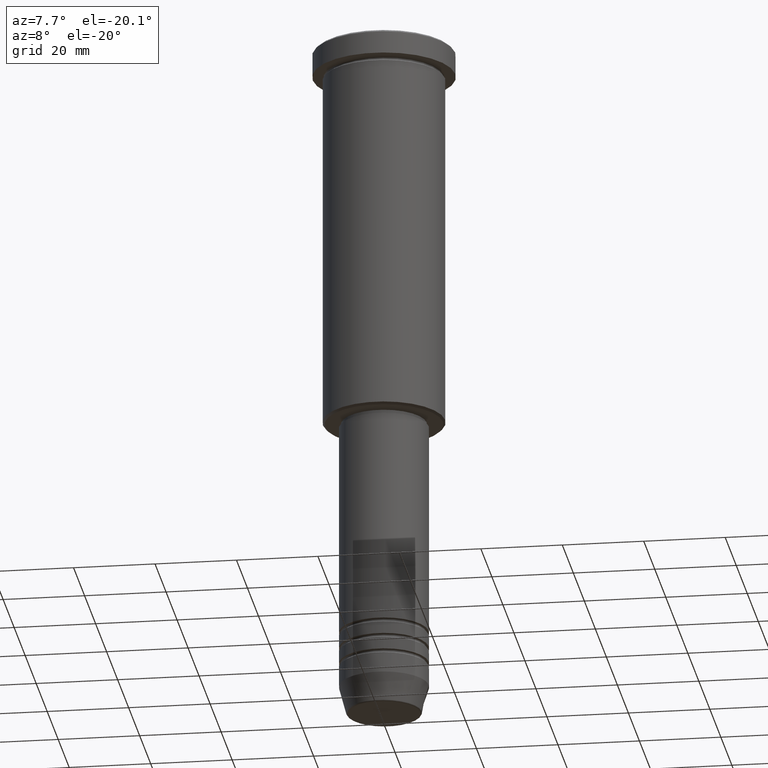
[diagram: clean part render]
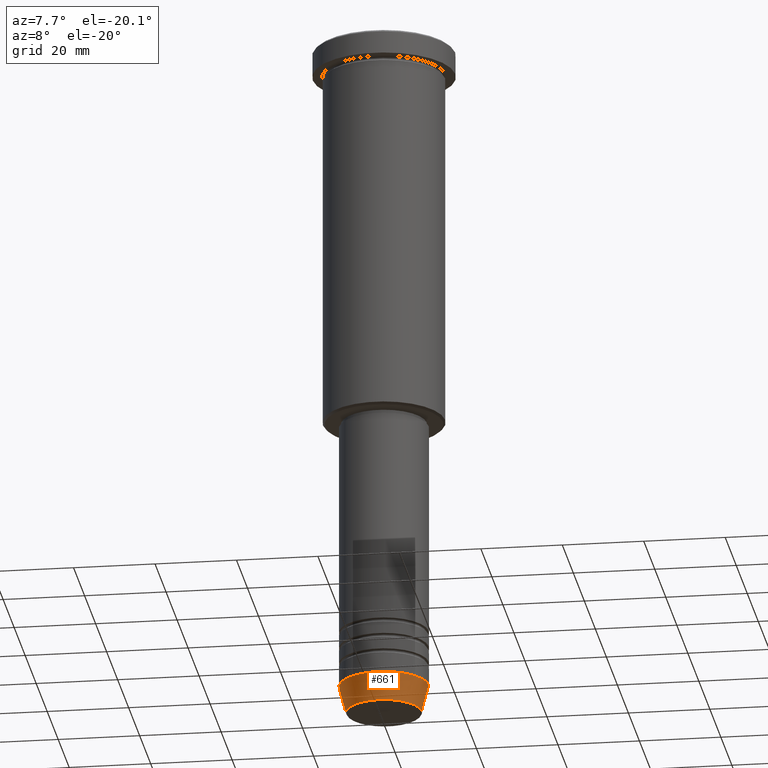
[diagram: same view with one face highlighted and labeled with its STEP entity id]
A machine part, auxiliary view. The second image highlights one B-rep face of the part: STEP entity #661.
In plain terms, the highlighted conical surface has half-angle 15 deg.
Its self-contained STEP definition (entity closure, byte-faithful):
#2 = AXIS2_PLACEMENT_3D ( 'NONE', #868, #958, #1023 ) ;
#28 = AXIS2_PLACEMENT_3D ( 'NONE', #932, #102, #477 ) ;
#74 = DIRECTION ( 'NONE',  ( -0.2588190451025213501, 3.169619151431772337E-17, 0.9659258262890680902 ) ) ;
#85 = EDGE_CURVE ( 'NONE', #426, #800, #736, .T. ) ;
#86 = LINE ( 'NONE', #272, #1019 ) ;
#102 = DIRECTION ( 'NONE',  ( -0.000000000000000000, -0.000000000000000000, 1.000000000000000000 ) ) ;
#168 = VECTOR ( 'NONE', #883, 1000.000000000000000 ) ;
#200 = EDGE_CURVE ( 'NONE', #800, #1162, #519, .T. ) ;
#216 = CARTESIAN_POINT ( 'NONE',  ( 0.000000000000000000, 0.000000000000000000, -163.9999999999999716 ) ) ;
#270 = AXIS2_PLACEMENT_3D ( 'NONE', #216, #588, #948 ) ;
#272 = CARTESIAN_POINT ( 'NONE',  ( -11.00000000000000000, 1.347111479062088405E-15, -163.9999999999999716 ) ) ;
#293 = ORIENTED_EDGE ( 'NONE', *, *, #1113, .F. ) ;
#298 = ORIENTED_EDGE ( 'NONE', *, *, #935, .F. ) ;
#384 = CONICAL_SURFACE ( 'NONE', #270, 11.00000000000000000, 0.2617993877991500740 ) ;
#426 = VERTEX_POINT ( 'NONE', #609 ) ;
#465 = CIRCLE ( 'NONE', #28, 11.00000000000000000 ) ;
#477 = DIRECTION ( 'NONE',  ( 1.000000000000000000, 0.000000000000000000, 0.000000000000000000 ) ) ;
#519 = LINE ( 'NONE', #631, #168 ) ;
#588 = DIRECTION ( 'NONE',  ( -0.000000000000000000, -0.000000000000000000, 1.000000000000000000 ) ) ;
#609 = CARTESIAN_POINT ( 'NONE',  ( -9.223655072137189492, 1.238341722557647202E-15, -170.6294095225512422 ) ) ;
#629 = CARTESIAN_POINT ( 'NONE',  ( 11.00000000000000000, 0.000000000000000000, -163.9999999999999716 ) ) ;
#631 = CARTESIAN_POINT ( 'NONE',  ( 11.00000000000000000, 0.000000000000000000, -163.9999999999999716 ) ) ;
#661 = ADVANCED_FACE ( 'NONE', ( #847 ), #384, .T. ) ;
#720 = ORIENTED_EDGE ( 'NONE', *, *, #85, .T. ) ;
#736 = CIRCLE ( 'NONE', #2, 9.223655072137189492 ) ;
#800 = VERTEX_POINT ( 'NONE', #1180 ) ;
#847 = FACE_OUTER_BOUND ( 'NONE', #1109, .T. ) ;
#868 = CARTESIAN_POINT ( 'NONE',  ( 0.000000000000000000, 0.000000000000000000, -170.6294095225512422 ) ) ;
#883 = DIRECTION ( 'NONE',  ( 0.2588190451025213501, 0.000000000000000000, 0.9659258262890680902 ) ) ;
#910 = CARTESIAN_POINT ( 'NONE',  ( -11.00000000000000000, 1.347111479062088405E-15, -163.9999999999999716 ) ) ;
#932 = CARTESIAN_POINT ( 'NONE',  ( 0.000000000000000000, 0.000000000000000000, -163.9999999999999716 ) ) ;
#935 = EDGE_CURVE ( 'NONE', #1100, #1162, #465, .T. ) ;
#948 = DIRECTION ( 'NONE',  ( 1.000000000000000000, 0.000000000000000000, 0.000000000000000000 ) ) ;
#958 = DIRECTION ( 'NONE',  ( -0.000000000000000000, -0.000000000000000000, 1.000000000000000000 ) ) ;
#1019 = VECTOR ( 'NONE', #74, 1000.000000000000000 ) ;
#1023 = DIRECTION ( 'NONE',  ( 1.000000000000000000, 0.000000000000000000, 0.000000000000000000 ) ) ;
#1100 = VERTEX_POINT ( 'NONE', #910 ) ;
#1109 = EDGE_LOOP ( 'NONE', ( #293, #720, #1122, #298 ) ) ;
#1113 = EDGE_CURVE ( 'NONE', #426, #1100, #86, .T. ) ;
#1122 = ORIENTED_EDGE ( 'NONE', *, *, #200, .T. ) ;
#1162 = VERTEX_POINT ( 'NONE', #629 ) ;
#1180 = CARTESIAN_POINT ( 'NONE',  ( 9.223655072137189492, 0.000000000000000000, -170.6294095225512422 ) ) ;